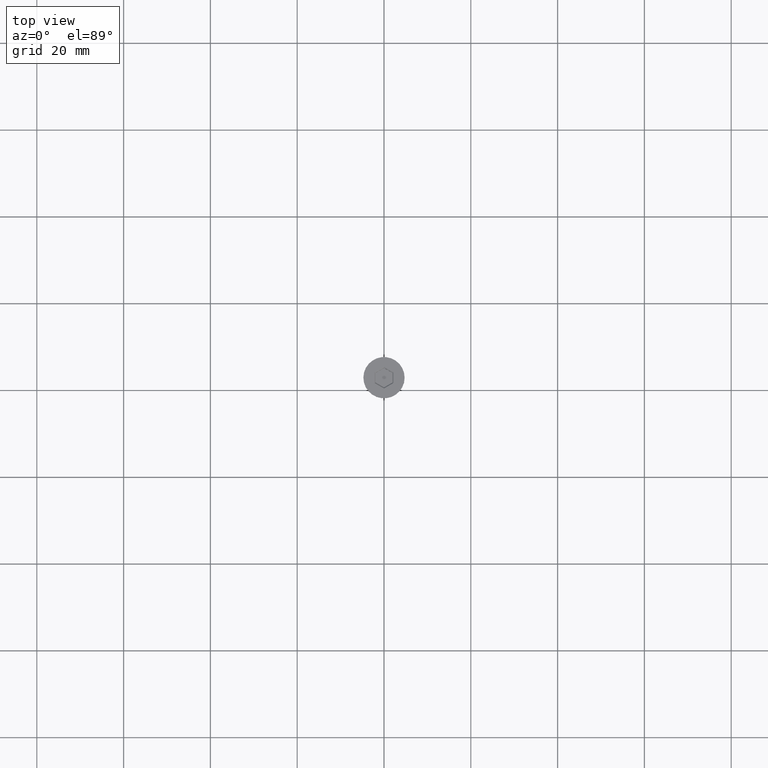
[diagram: clean part render]
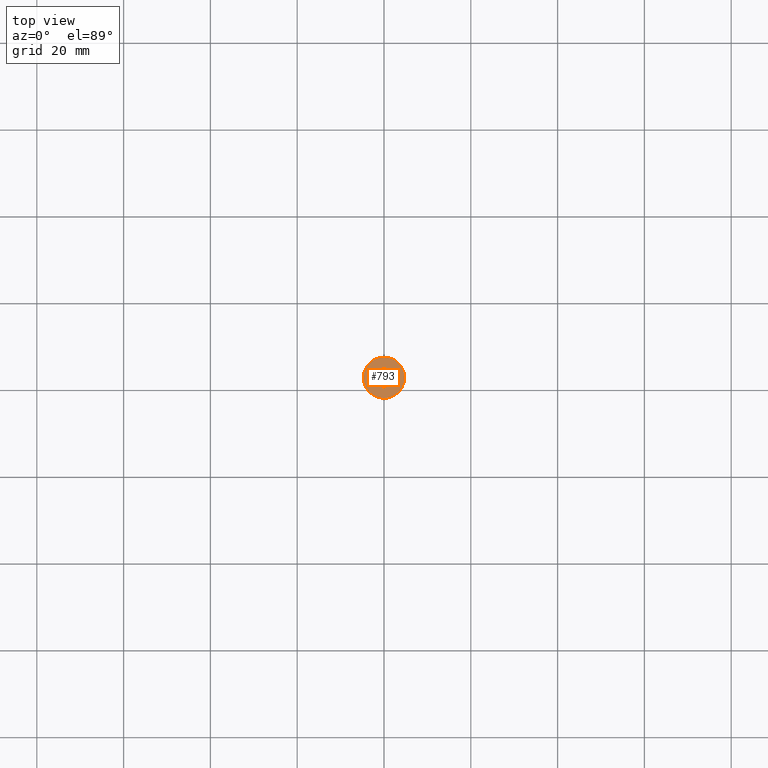
[diagram: same view with one face highlighted and labeled with its STEP entity id]
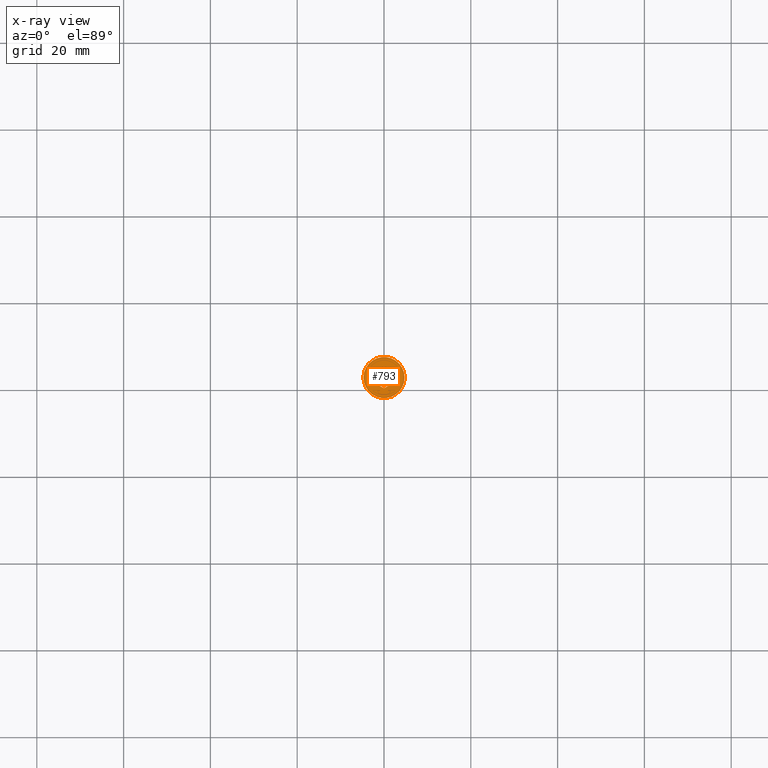
[diagram: x-ray of the same camera — body ghosted, the highlighted face saturated]
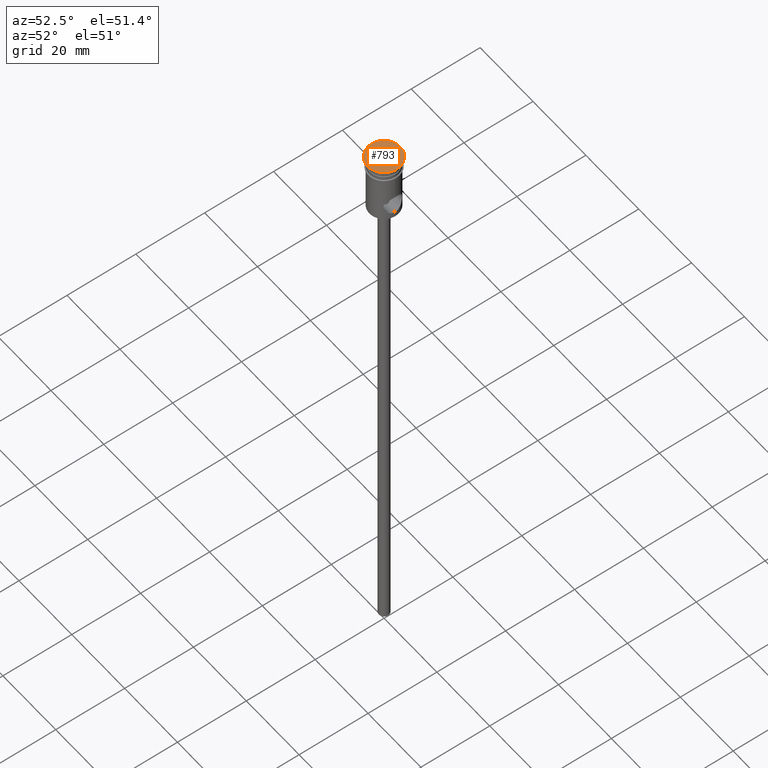
[diagram: same view with one face highlighted and labeled with its STEP entity id]
A machine part, top view. The second image highlights one B-rep face of the part: STEP entity #793.
The next image is the same camera in x-ray: the body ghosted, the highlighted face saturated — about 0% of this face is hidden behind the body in this view.
A second angle (auxiliary view) of the same face is appended — the face is thin or edge-on in the first view.
In plain terms, the highlighted planar face has unit normal (0, -0, 1).
Its self-contained STEP definition (entity closure, byte-faithful):
#1 = CARTESIAN_POINT ( 'NONE',  ( 4.750000000000000000, 0.000000000000000000, 0.000000000000000000 ) ) ;
#9 = ORIENTED_EDGE ( 'NONE', *, *, #1035, .T. ) ;
#16 = VERTEX_POINT ( 'NONE', #117 ) ;
#41 = LINE ( 'NONE', #375, #505 ) ;
#42 = CARTESIAN_POINT ( 'NONE',  ( 0.000000000000000000, 0.000000000000000000, 0.000000000000000000 ) ) ;
#61 = CARTESIAN_POINT ( 'NONE',  ( -2.149999999999994582, -1.241303078757691303, 0.000000000000000000 ) ) ;
#63 = VECTOR ( 'NONE', #97, 1000.000000000000114 ) ;
#65 = VERTEX_POINT ( 'NONE', #61 ) ;
#68 = DIRECTION ( 'NONE',  ( -0.000000000000000000, -0.000000000000000000, 1.000000000000000000 ) ) ;
#90 = DIRECTION ( 'NONE',  ( 0.8660254037844385966, 0.5000000000000002220, 0.000000000000000000 ) ) ;
#97 = DIRECTION ( 'NONE',  ( -0.8660254037844385966, 0.5000000000000001110, 0.000000000000000000 ) ) ;
#117 = CARTESIAN_POINT ( 'NONE',  ( 3.449642192269546890E-16, 2.482606157515383494, 0.000000000000000000 ) ) ;
#143 = ORIENTED_EDGE ( 'NONE', *, *, #879, .T. ) ;
#145 = DIRECTION ( 'NONE',  ( 9.630221786776664787E-17, 1.000000000000000000, 0.000000000000000000 ) ) ;
#202 = DIRECTION ( 'NONE',  ( 0.8660254037844385966, -0.5000000000000001110, 0.000000000000000000 ) ) ;
#218 = VECTOR ( 'NONE', #202, 1000.000000000000114 ) ;
#252 = DIRECTION ( 'NONE',  ( -1.926044357355332218E-16, -1.000000000000000000, 0.000000000000000000 ) ) ;
#364 = PLANE ( 'NONE',  #835 ) ;
#375 = CARTESIAN_POINT ( 'NONE',  ( -2.149999999999994138, 1.125833024919770109, 0.000000000000000000 ) ) ;
#425 = CIRCLE ( 'NONE', #1369, 4.750000000000000000 ) ;
#443 = AXIS2_PLACEMENT_3D ( 'NONE', #1051, #68, #494 ) ;
#460 = FACE_OUTER_BOUND ( 'NONE', #1020, .T. ) ;
#473 = ORIENTED_EDGE ( 'NONE', *, *, #1333, .T. ) ;
#494 = DIRECTION ( 'NONE',  ( 1.000000000000000000, 0.000000000000000000, 0.000000000000000000 ) ) ;
#501 = CARTESIAN_POINT ( 'NONE',  ( 2.049999999999996714, 1.299038105676652455, 0.000000000000000000 ) ) ;
#505 = VECTOR ( 'NONE', #145, 1000.000000000000000 ) ;
#559 = CARTESIAN_POINT ( 'NONE',  ( 2.149999999999992806, -1.125833024919770331, 0.000000000000000000 ) ) ;
#576 = EDGE_CURVE ( 'NONE', #65, #890, #41, .T. ) ;
#581 = FACE_BOUND ( 'NONE', #600, .T. ) ;
#594 = EDGE_CURVE ( 'NONE', #667, #659, #1058, .T. ) ;
#600 = EDGE_LOOP ( 'NONE', ( #143, #1351, #9, #690, #1057, #1312 ) ) ;
#622 = CARTESIAN_POINT ( 'NONE',  ( 2.149999999999992806, -1.241303078757692413, 0.000000000000000000 ) ) ;
#631 = VERTEX_POINT ( 'NONE', #1103 ) ;
#659 = VERTEX_POINT ( 'NONE', #1208 ) ;
#660 = EDGE_CURVE ( 'NONE', #16, #1013, #1300, .T. ) ;
#667 = VERTEX_POINT ( 'NONE', #1 ) ;
#690 = ORIENTED_EDGE ( 'NONE', *, *, #660, .T. ) ;
#714 = VERTEX_POINT ( 'NONE', #622 ) ;
#767 = LINE ( 'NONE', #559, #776 ) ;
#776 = VECTOR ( 'NONE', #252, 1000.000000000000000 ) ;
#793 = ADVANCED_FACE ( 'NONE', ( #581, #460 ), #364, .T. ) ;
#816 = DIRECTION ( 'NONE',  ( -0.000000000000000000, -0.000000000000000000, 1.000000000000000000 ) ) ;
#834 = DIRECTION ( 'NONE',  ( -0.8660254037844387076, -0.4999999999999998335, 0.000000000000000000 ) ) ;
#835 = AXIS2_PLACEMENT_3D ( 'NONE', #978, #1225, #877 ) ;
#851 = CARTESIAN_POINT ( 'NONE',  ( 0.09999999999999617528, -2.424871130596422564, 0.000000000000000000 ) ) ;
#859 = VECTOR ( 'NONE', #834, 1000.000000000000000 ) ;
#875 = LINE ( 'NONE', #1231, #63 ) ;
#877 = DIRECTION ( 'NONE',  ( 1.000000000000000000, 0.000000000000000000, 0.000000000000000000 ) ) ;
#879 = EDGE_CURVE ( 'NONE', #631, #65, #875, .T. ) ;
#890 = VERTEX_POINT ( 'NONE', #993 ) ;
#894 = CARTESIAN_POINT ( 'NONE',  ( -0.09999999999999699407, 2.424871130596422564, 0.000000000000000000 ) ) ;
#915 = VECTOR ( 'NONE', #90, 999.9999999999998863 ) ;
#978 = CARTESIAN_POINT ( 'NONE',  ( 0.000000000000000000, 0.000000000000000000, 0.000000000000000000 ) ) ;
#993 = CARTESIAN_POINT ( 'NONE',  ( -2.149999999999994138, 1.241303078757690859, 0.000000000000000000 ) ) ;
#1013 = VERTEX_POINT ( 'NONE', #1358 ) ;
#1020 = EDGE_LOOP ( 'NONE', ( #1273, #473 ) ) ;
#1035 = EDGE_CURVE ( 'NONE', #890, #16, #1330, .T. ) ;
#1051 = CARTESIAN_POINT ( 'NONE',  ( 0.000000000000000000, 0.000000000000000000, 0.000000000000000000 ) ) ;
#1057 = ORIENTED_EDGE ( 'NONE', *, *, #1165, .T. ) ;
#1058 = CIRCLE ( 'NONE', #443, 4.750000000000000000 ) ;
#1066 = LINE ( 'NONE', #851, #859 ) ;
#1103 = CARTESIAN_POINT ( 'NONE',  ( -6.517717499969021618E-16, -2.482606157515383050, 0.000000000000000000 ) ) ;
#1165 = EDGE_CURVE ( 'NONE', #1013, #714, #767, .T. ) ;
#1208 = CARTESIAN_POINT ( 'NONE',  ( -4.750000000000000000, 5.817072295949927426E-16, 0.000000000000000000 ) ) ;
#1225 = DIRECTION ( 'NONE',  ( 0.000000000000000000, -0.000000000000000000, 1.000000000000000000 ) ) ;
#1231 = CARTESIAN_POINT ( 'NONE',  ( -2.049999999999997602, -1.299038105676652011, 0.000000000000000000 ) ) ;
#1248 = EDGE_CURVE ( 'NONE', #714, #631, #1066, .T. ) ;
#1273 = ORIENTED_EDGE ( 'NONE', *, *, #594, .T. ) ;
#1300 = LINE ( 'NONE', #501, #218 ) ;
#1312 = ORIENTED_EDGE ( 'NONE', *, *, #1248, .T. ) ;
#1330 = LINE ( 'NONE', #894, #915 ) ;
#1333 = EDGE_CURVE ( 'NONE', #659, #667, #425, .T. ) ;
#1351 = ORIENTED_EDGE ( 'NONE', *, *, #576, .T. ) ;
#1358 = CARTESIAN_POINT ( 'NONE',  ( 2.149999999999993250, 1.241303078757691969, 0.000000000000000000 ) ) ;
#1369 = AXIS2_PLACEMENT_3D ( 'NONE', #42, #816, #1383 ) ;
#1383 = DIRECTION ( 'NONE',  ( 1.000000000000000000, 0.000000000000000000, 0.000000000000000000 ) ) ;